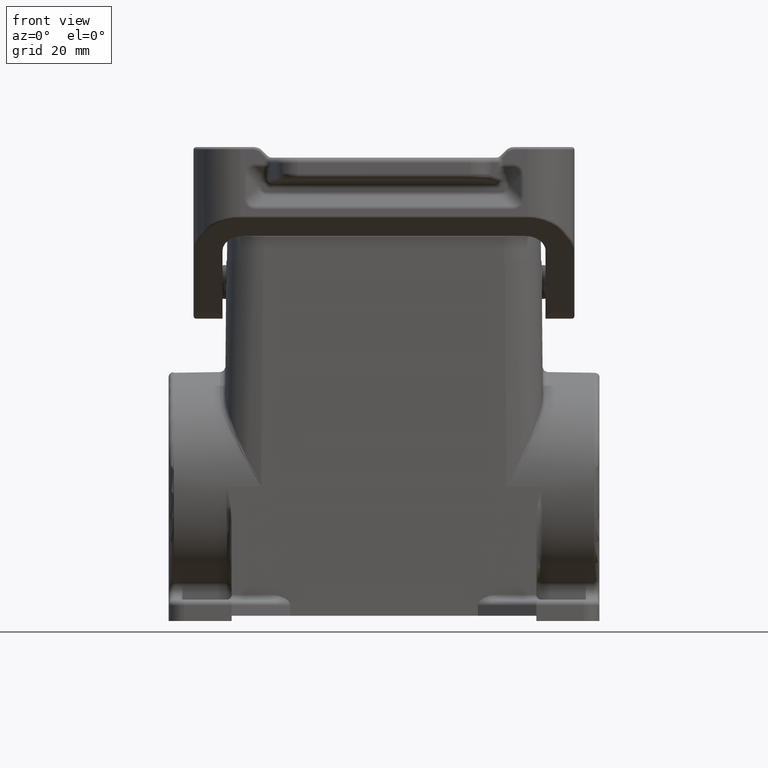
[diagram: clean part render]
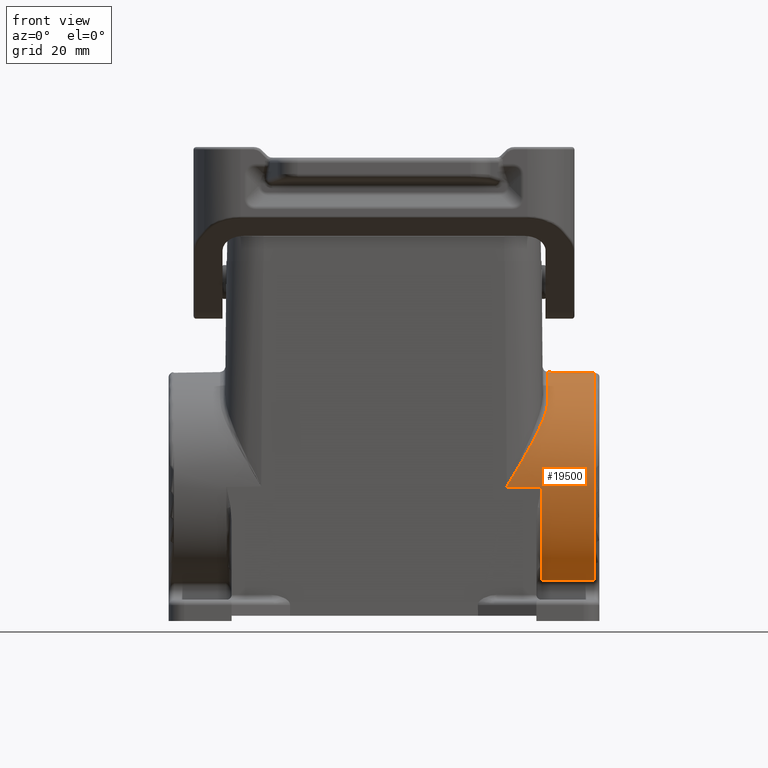
[diagram: same view with one face highlighted and labeled with its STEP entity id]
A machine part, front view. The second image highlights one B-rep face of the part: STEP entity #19500.
In plain terms, the highlighted cylindrical surface (partial cylindrical patch) has radius 21.8744 mm, axis along (1, 0, -0).
Its self-contained STEP definition (entity closure, byte-faithful):
#2060=CARTESIAN_POINT('',(11.7129397181771,47.7285692818229,0.));
#2070=DIRECTION('',(-0.00872620324394422,0.00872620324394422,
0.99992385047757));
#2080=DIRECTION('',(0.999961923064171,0.,0.00872653549837393));
#2090=AXIS2_PLACEMENT_3D('',#2060,#2070,#2080);
#2100=CYLINDRICAL_SURFACE('',#2090,7.);
#2110=CARTESIAN_POINT('',(-5.809144,33.250653,45.5));
#2120=DIRECTION('',(-1.,0.,0.));
#2130=DIRECTION('',(0.,1.,0.));
#2140=AXIS2_PLACEMENT_3D('',#2110,#2120,#2130);
#2150=CYLINDRICAL_SURFACE('',#2140,21.8744223723098);
#2160=CARTESIAN_POINT('',(11.2073483409932,55.1250753723098,
45.4999999999998));
#2170=CARTESIAN_POINT('',(11.2164859319778,55.1250753723098,
45.4840915157677));
#2180=CARTESIAN_POINT('',(11.2256236015096,55.1250580178034,
45.4681832839674));
#2190=CARTESIAN_POINT('',(11.2347612992501,55.1250233104419,
45.4522753327669));
#2200=CARTESIAN_POINT('',(11.2438989969907,55.1249886030805,
45.4363673815665));
#2210=CARTESIAN_POINT('',(11.2530367229402,55.1249365428639,
45.4204597109661));
#2220=CARTESIAN_POINT('',(11.2621744267664,55.1248671314414,
45.4045523491375));
#2230=CARTESIAN_POINT('',(11.2713121305926,55.1247977200189,
45.3886449873089));
#2240=CARTESIAN_POINT('',(11.2804498182669,55.1247109574323,
45.3727379376822));
#2250=CARTESIAN_POINT('',(11.2895874305053,55.1246068452605,
45.3568312232876));
#2260=CARTESIAN_POINT('',(11.298725050837,55.1245027329964,
45.3409244948043));
#2270=CARTESIAN_POINT('',(11.3078625490014,55.1243812715778,
45.3250181552539));
#2280=CARTESIAN_POINT('',(11.3170000001164,55.1242424613328,
45.3091120766616));
#2290=B_SPLINE_CURVE_WITH_KNOTS('',3,(#2160,#2170,#2180,#2190,#2200,
#2210,#2220,#2230,#2240,#2250,#2260,#2270,#2280),.UNSPECIFIED.,.F.,.F.,(
4,3,3,3,4),(0.,0.055037421418957,0.110073664222635,0.165108628369006,
0.220142250874777),.UNSPECIFIED.);
#2300=SURFACE_CURVE('',#2290,(#2100,#2150),.CURVE_3D.);
#2310=CARTESIAN_POINT('',(11.2073483409932,55.1250753723098,45.5));
#2320=VERTEX_POINT('',#2310);
#2330=CARTESIAN_POINT('',(11.3170000001164,55.1242424613328,
45.3091120766616));
#2340=VERTEX_POINT('',#2330);
#2350=EDGE_CURVE('',#2320,#2340,#2300,.T.);
#9640=CARTESIAN_POINT('',(3.46833953718699,47.3298373576048,
28.758825550554));
#9650=CARTESIAN_POINT('',(3.46805976998204,47.3662890404187,
28.7894811036654));
#9660=CARTESIAN_POINT('',(3.46804739972517,47.4026489840104,
28.8202628768185));
#9670=CARTESIAN_POINT('',(3.46842387751178,47.457123287825,
28.8666861500366));
#9680=CARTESIAN_POINT('',(3.46861636155985,47.47532687989,
28.8822510358509));
#9690=CARTESIAN_POINT('',(3.4701709194312,47.5846903080423,
28.976072999363));
#9700=CARTESIAN_POINT('',(3.47312500056299,47.6751623884397,
29.0549925603932));
#9710=CARTESIAN_POINT('',(3.48220456035544,47.8547361468644,
29.2142538288812));
#9720=CARTESIAN_POINT('',(3.48833270981729,47.9438192917733,
29.294582014239));
#9730=CARTESIAN_POINT('',(3.50362360091184,48.12054081695,29.45658470036
));
#9740=CARTESIAN_POINT('',(3.51278818526999,48.2081619066285,
29.5382461510434));
#9750=CARTESIAN_POINT('',(3.53402168398482,48.3819275353914,
29.7028727683062));
#9760=CARTESIAN_POINT('',(3.54609278592974,48.4680554070517,
29.7858258236439));
#9770=CARTESIAN_POINT('',(3.57300744640622,48.6387534289577,
29.9529423922663));
#9780=CARTESIAN_POINT('',(3.58785170103596,48.7233085239567,
30.0370939274851));
#9790=CARTESIAN_POINT('',(3.62018690848006,48.8908204002055,
30.2065463042744));
#9800=CARTESIAN_POINT('',(3.63767817858426,48.9737631221158,
30.2918357403056));
#9810=CARTESIAN_POINT('',(3.67518504587759,49.1380114689333,
30.4635004004896));
#9820=CARTESIAN_POINT('',(3.69520174870482,49.2193089066031,
30.5498699214095));
#9830=CARTESIAN_POINT('',(3.74623175914934,49.4128089681586,
30.7588071707675));
#9840=CARTESIAN_POINT('',(3.77841115698162,49.5241605458401,
30.8818377657053));
#9850=CARTESIAN_POINT('',(3.84720355361476,49.7435065097243,
31.129768009896));
#9860=CARTESIAN_POINT('',(3.88381617188659,49.8514786467468,
31.254649231039));
#9870=CARTESIAN_POINT('',(3.96118902424724,50.064043203658,
31.506165305581));
#9880=CARTESIAN_POINT('',(4.00194626240063,50.168608503469,
31.6327753335512));
#9890=CARTESIAN_POINT('',(4.08733138375758,50.3743233594957,
31.8876117665157));
#9900=CARTESIAN_POINT('',(4.13195538319836,50.4754488135427,
32.0158149977193));
#9910=CARTESIAN_POINT('',(4.22483730386437,50.6743137701708,
32.2737774254749));
#9920=CARTESIAN_POINT('',(4.27309251292893,50.7720300515072,
32.403515699771));
#9930=CARTESIAN_POINT('',(4.37297673270856,50.9640225379163,
32.6643796942401));
#9940=CARTESIAN_POINT('',(4.42460104875464,51.0582793794354,
32.7954853486268));
#9950=CARTESIAN_POINT('',(4.53099910554225,51.2433601504431,
33.0589875010991));
#9960=CARTESIAN_POINT('',(4.58576804546673,51.3341665785297,
33.1913653612731));
#9970=CARTESIAN_POINT('',(4.69824142390555,51.5123526051,
33.4573123923448));
#9980=CARTESIAN_POINT('',(4.75594079889661,51.5997166636509,
33.5908641793945));
#9990=CARTESIAN_POINT('',(4.87422402081522,51.7712470901028,
33.859406440072));
#10000=CARTESIAN_POINT('',(4.93480943213786,51.8553908017796,
33.9943831566953));
#10010=CARTESIAN_POINT('',(5.05854421377567,52.0202698523884,
34.2653655102558));
#10020=CARTESIAN_POINT('',(5.12168837140339,52.1009925955021,
34.4013558846782));
#10030=CARTESIAN_POINT('',(5.25036752557261,52.2590549683613,
34.6742945535834));
#10040=CARTESIAN_POINT('',(5.3158973658957,52.3363831705378,
34.8112285503128));
#10050=CARTESIAN_POINT('',(5.4491824011084,52.4876794338201,
35.0859815216974));
#10060=CARTESIAN_POINT('',(5.51693241288896,52.561637308055,
35.2237870634487));
#10070=CARTESIAN_POINT('',(5.65451804697071,52.7062343796616,
35.5002468365682));
#10080=CARTESIAN_POINT('',(5.72434895274381,52.7768637285834,
35.6388885860977));
#10090=CARTESIAN_POINT('',(5.86593901799052,52.9148156417483,
35.9169335811276));
#10100=CARTESIAN_POINT('',(5.93769312256565,52.9821299510452,
36.0563249227008));
#10110=CARTESIAN_POINT('',(6.08299525354225,53.1134812547136,
36.3358162060853));
#10120=CARTESIAN_POINT('',(6.15653833915053,53.177510751242,
36.4759049155226));
#10130=CARTESIAN_POINT('',(6.30528943797459,53.3023194126407,
36.7567367503309));
#10140=CARTESIAN_POINT('',(6.38049313951682,53.3630923194093,
36.8974702925759));
#10150=CARTESIAN_POINT('',(6.54698987817741,53.4927417528799,
37.2065437121064));
#10160=CARTESIAN_POINT('',(6.63859368170481,53.5609290804687,
37.3749848223105));
#10170=CARTESIAN_POINT('',(6.82380134213421,53.6927767491953,
37.712651285967));
#10180=CARTESIAN_POINT('',(6.91739811996865,53.7564286889314,
37.8818620582533));
#10190=CARTESIAN_POINT('',(7.10641571474084,53.8792523619108,
38.2210037987341));
#10200=CARTESIAN_POINT('',(7.20182885001748,53.9384160175552,
38.3909195404644));
#10210=CARTESIAN_POINT('',(7.39430853464444,54.05230390381,
38.7314023771745));
#10220=CARTESIAN_POINT('',(7.49136754401883,54.1070210829175,
38.9019549987803));
#10230=CARTESIAN_POINT('',(7.68699335107737,54.212063077843,
39.2436742971923));
#10240=CARTESIAN_POINT('',(7.785552977601,54.2623810613918,
39.4148272450816));
#10250=CARTESIAN_POINT('',(7.98401590150642,54.3586531449347,
39.7576661572141));
#10260=CARTESIAN_POINT('',(8.08391197983999,54.4046017830158,
39.9293389107722));
#10270=CARTESIAN_POINT('',(8.28490562569756,54.492169844706,
40.2731655137943));
#10280=CARTESIAN_POINT('',(8.38599613173598,54.5337844363222,
40.4453066759787));
#10290=CARTESIAN_POINT('',(8.58924068106713,54.6127148905689,
40.7900170567886));
#10300=CARTESIAN_POINT('',(8.69138778159717,54.6500265936128,
40.9625740373844));
#10310=CARTESIAN_POINT('',(8.89670181432637,54.7204091612088,
41.3082146241193));
#10320=CARTESIAN_POINT('',(8.99986268190122,54.7534727857456,
41.4812866494119));
#10330=CARTESIAN_POINT('',(9.20699214358454,54.8153467745466,
41.8277646298802));
#10340=CARTESIAN_POINT('',(9.3109540000672,54.8441540647915,
42.0011590429021));
#10350=CARTESIAN_POINT('',(9.51956400462232,54.8975370290315,
42.3482384710066));
#10360=CARTESIAN_POINT('',(9.62420550772758,54.9221100909038,
42.5219122243779));
#10370=CARTESIAN_POINT('',(9.83405562738039,54.9670424945562,
42.8695063893679));
#10380=CARTESIAN_POINT('',(9.93925767104467,54.9873997104978,
43.0434157703369));
#10390=CARTESIAN_POINT('',(10.1501215930068,55.0239165951992,
43.3914533784931));
#10400=CARTESIAN_POINT('',(10.2557769941949,55.0400742416872,
43.5655707737327));
#10410=CARTESIAN_POINT('',(10.4674260901451,55.0682012124428,
43.913970234078));
#10420=CARTESIAN_POINT('',(10.5734133212741,55.0801692616207,
44.0882415939369));
#10430=CARTESIAN_POINT('',(10.7856157944088,55.0999250557748,
44.4369114182353));
#10440=CARTESIAN_POINT('',(10.8918246097132,55.107711876604,
44.6112992775776));
#10450=CARTESIAN_POINT('',(11.1043588219245,55.1191094624699,
44.9601613210511));
#10460=CARTESIAN_POINT('',(11.2106882889378,55.1227196795974,
45.1346185731645));
#10470=CARTESIAN_POINT('',(11.3170000001164,55.1242424613328,
45.3091120766616));
#10480=B_SPLINE_CURVE_WITH_KNOTS('',3,(#9640,#9650,#9660,#9670,#9680,
#9690,#9700,#9710,#9720,#9730,#9740,#9750,#9760,#9770,#9780,#9790,#9800,
#9810,#9820,#9830,#9840,#9850,#9860,#9870,#9880,#9890,#9900,#9910,#9920,
#9930,#9940,#9950,#9960,#9970,#9980,#9990,#10000,#10010,#10020,#10030,
#10040,#10050,#10060,#10070,#10080,#10090,#10100,#10110,#10120,#10130,
#10140,#10150,#10160,#10170,#10180,#10190,#10200,#10210,#10220,#10230,
#10240,#10250,#10260,#10270,#10280,#10290,#10300,#10310,#10320,#10330,
#10340,#10350,#10360,#10370,#10380,#10390,#10400,#10410,#10420,#10430,
#10440,#10450,#10460,#10470),.UNSPECIFIED.,.F.,.F.,(4,2,2,2,2,2,2,2,2,2,
2,2,2,2,2,2,2,2,2,2,2,2,2,2,2,2,2,2,2,2,2,2,2,2,2,2,2,2,2,2,2,4),(0.,
0.14093644557856,0.211830467024438,0.567502383559589,0.923571177880405,
1.28001676835379,1.63695058927316,1.9942474579973,2.35191052279432,
2.70991926831335,3.21335664490568,3.71743200246327,4.22214839680325,
4.72744515347368,5.23352581999672,5.74012979479552,6.2472500051128,
6.75483824899961,7.26413454068193,7.77384896023706,8.28397077467095,
8.79446228170129,9.30540382841038,9.81667064078708,10.3282511618902,
10.8401160876648,11.4502803336149,12.0607907916097,12.6716300778208,
13.282758059777,13.8942333181826,14.5059448809258,15.1178753903332,
15.7299938909333,16.3427985271649,16.9557463553805,17.568819692592,
18.1819935792688,18.7952957316329,19.4086575391215,20.0220664866507,
20.6354969920398),.UNSPECIFIED.);
#10490=CARTESIAN_POINT('',(3.46833953718699,47.3298373576048,
28.758825550554));
#10500=VERTEX_POINT('',#10490);
#10510=EDGE_CURVE('',#10500,#2340,#10480,.T.);
#12790=CARTESIAN_POINT('',(-5.309144,45.8712799545903,63.3664526248294))
;
#12800=VERTEX_POINT('',#12790);
#12850=CARTESIAN_POINT('',(-5.809144,45.8712799545903,63.3664526248294))
;
#12860=DIRECTION('',(-1.,0.,0.));
#12870=VECTOR('',#12860,1.);
#12880=LINE('',#12850,#12870);
#12890=CARTESIAN_POINT('',(4.690856,45.8712799545903,63.3664526248294));
#12900=VERTEX_POINT('',#12890);
#12910=EDGE_CURVE('',#12900,#12800,#12880,.T.);
#14650=CARTESIAN_POINT('',(11.7129397181771,18.7727367181771,0.));
#14660=DIRECTION('',(-0.00872620324394422,-0.00872620324394422,
0.99992385047757));
#14670=DIRECTION('',(0.999961923064171,0.,0.00872653549837393));
#14680=AXIS2_PLACEMENT_3D('',#14650,#14660,#14670);
#14690=CYLINDRICAL_SURFACE('',#14680,7.);
#14740=CARTESIAN_POINT('',(11.3170000001164,11.3770635386672,
45.3091120766616));
#14750=VERTEX_POINT('',#14740);
#14800=CARTESIAN_POINT('',(11.3170000001164,11.3770635386672,
45.3091120766616));
#14810=CARTESIAN_POINT('',(11.3078625490014,11.3769247284222,
45.3250181552539));
#14820=CARTESIAN_POINT('',(11.2987250508398,11.3768032670036,
45.3409244948059));
#14830=CARTESIAN_POINT('',(11.2895874305075,11.3766991547395,
45.3568312232888));
#14840=CARTESIAN_POINT('',(11.2804498182684,11.3765950425677,
45.3727379376829));
#14850=CARTESIAN_POINT('',(11.2713121305939,11.3765082799811,
45.3886449873094));
#14860=CARTESIAN_POINT('',(11.2621744267675,11.3764388685586,
45.4045523491379));
#14870=CARTESIAN_POINT('',(11.2530367229411,11.3763694571361,
45.4204597109664));
#14880=CARTESIAN_POINT('',(11.2438989969914,11.3763173969195,
45.4363673815667));
#14890=CARTESIAN_POINT('',(11.2347612992508,11.3762826895581,
45.4522753327671));
#14900=CARTESIAN_POINT('',(11.2256236015102,11.3762479821966,
45.4681832839674));
#14910=CARTESIAN_POINT('',(11.2164859319785,11.3762306276902,
45.4840915157678));
#14920=CARTESIAN_POINT('',(11.207348340994,11.3762306276902,
45.4999999999998));
#14930=B_SPLINE_CURVE_WITH_KNOTS('',3,(#14800,#14810,#14820,#14830,
#14840,#14850,#14860,#14870,#14880,#14890,#14900,#14910,#14920),
.UNSPECIFIED.,.F.,.F.,(4,3,3,3,4),(0.,0.0550336225050489,
0.110068586650464,0.16510482945505,0.220142250878972),.UNSPECIFIED.);
#14940=SURFACE_CURVE('',#14930,(#14690,#2150),.CURVE_3D.);
#14950=CARTESIAN_POINT('',(11.207348340994,11.3762306276902,45.5));
#14960=VERTEX_POINT('',#14950);
#14970=EDGE_CURVE('',#14750,#14960,#14940,.T.);
#17870=CARTESIAN_POINT('',(-5.809144,11.3762306276902,45.5));
#17880=DIRECTION('',(-1.,0.,0.));
#17890=VECTOR('',#17880,1.);
#17900=LINE('',#17870,#17890);
#17910=CARTESIAN_POINT('',(4.690856,11.3762306276902,45.5));
#17920=VERTEX_POINT('',#17910);
#17930=EDGE_CURVE('',#14960,#17920,#17900,.T.);
#17940=ORIENTED_EDGE('',*,*,#17930,.T.);
#17950=ORIENTED_EDGE('',*,*,#14970,.T.);
#17960=CARTESIAN_POINT('',(11.3170000001164,11.3770635386672,
45.3091120766616));
#17970=CARTESIAN_POINT('',(11.2106882889378,11.3785863204026,
45.1346185731646));
#17980=CARTESIAN_POINT('',(11.1043588219246,11.3821965375301,
44.9601613210512));
#17990=CARTESIAN_POINT('',(10.8918246097133,11.393594123396,
44.6112992775777));
#18000=CARTESIAN_POINT('',(10.7856157944088,11.4013809442252,
44.4369114182355));
#18010=CARTESIAN_POINT('',(10.573413321274,11.4211367383793,
44.0882415939369));
#18020=CARTESIAN_POINT('',(10.4674260901454,11.4331047875572,
43.9139702340782));
#18030=CARTESIAN_POINT('',(10.2557769941951,11.4612317583128,
43.5655707737328));
#18040=CARTESIAN_POINT('',(10.1501215930069,11.4773894048007,
43.3914533784933));
#18050=CARTESIAN_POINT('',(9.93925767104481,11.5139062895022,
43.0434157703371));
#18060=CARTESIAN_POINT('',(9.83405562738045,11.5342635054438,
42.8695063893682));
#18070=CARTESIAN_POINT('',(9.62420550772769,11.5791959090961,
42.5219122243782));
#18080=CARTESIAN_POINT('',(9.51956400462251,11.6037689709685,
42.3482384710068));
#18090=CARTESIAN_POINT('',(9.31095400006749,11.6571519352084,
42.0011590429025));
#18100=CARTESIAN_POINT('',(9.20699214358467,11.6859592254533,
41.8277646298805));
#18110=CARTESIAN_POINT('',(8.99986268190143,11.7478332142543,
41.4812866494123));
#18120=CARTESIAN_POINT('',(8.89670181432663,11.7808968387912,
41.3082146241197));
#18130=CARTESIAN_POINT('',(8.69138778159742,11.8512794063871,
40.9625740373847));
#18140=CARTESIAN_POINT('',(8.58924068106741,11.888591109431,
40.7900170567889));
#18150=CARTESIAN_POINT('',(8.38599613173629,11.9675215636777,
40.4453066759791));
#18160=CARTESIAN_POINT('',(8.2849056256978,12.0091361552939,
40.2731655137947));
#18170=CARTESIAN_POINT('',(8.0839119798403,12.096704216984,
39.9293389107726));
#18180=CARTESIAN_POINT('',(7.98401590150671,12.1426528550652,
39.7576661572145));
#18190=CARTESIAN_POINT('',(7.78555297760129,12.2389249386081,
39.4148272450821));
#18200=CARTESIAN_POINT('',(7.68699335107766,12.2892429221569,
39.2436742971928));
#18210=CARTESIAN_POINT('',(7.49136754401914,12.3942849170823,
38.9019549987808));
#18220=CARTESIAN_POINT('',(7.39430853464475,12.4490020961898,
38.7314023771751));
#18230=CARTESIAN_POINT('',(7.20182885001783,12.5628899824446,
38.390919540465));
#18240=CARTESIAN_POINT('',(7.10641571474118,12.6220536380891,
38.2210037987346));
#18250=CARTESIAN_POINT('',(6.91739811996901,12.7448773110684,
37.8818620582539));
#18260=CARTESIAN_POINT('',(6.82380134213459,12.8085292508044,
37.7126512859676));
#18270=CARTESIAN_POINT('',(6.63859368170519,12.9403769195311,
37.3749848223111));
#18280=CARTESIAN_POINT('',(6.54698987817778,13.0085642471198,
37.2065437121071));
#18290=CARTESIAN_POINT('',(6.38049313950931,13.1382136805966,
36.8974702925619));
#18300=CARTESIAN_POINT('',(6.30528943795943,13.1989865873716,
36.7567367503025));
#18310=CARTESIAN_POINT('',(6.15653833912029,13.3237952487838,
36.4759049154652));
#18320=CARTESIAN_POINT('',(6.08299525350469,13.3878247453194,
36.3358162060136));
#18330=CARTESIAN_POINT('',(5.93769312251379,13.5191760490027,
36.0563249226004));
#18340=CARTESIAN_POINT('',(5.86593901793173,13.5864903583074,
35.916933581013));
#18350=CARTESIAN_POINT('',(5.72434895267159,13.7244422714886,
35.6388885859549));
#18360=CARTESIAN_POINT('',(5.65451804689192,13.7950716204189,
35.5002468364112));
#18370=CARTESIAN_POINT('',(5.51693241279769,13.9396686920432,
35.2237870632639));
#18380=CARTESIAN_POINT('',(5.44918240101107,14.0136265662873,
35.0859815214986));
#18390=CARTESIAN_POINT('',(5.31589736578692,14.1649228295887,
34.8112285500866));
#18400=CARTESIAN_POINT('',(5.25036752545835,14.2422510317751,
34.6742945533436));
#18410=CARTESIAN_POINT('',(5.1216883712788,14.4003134046549,
34.4013558844114));
#18420=CARTESIAN_POINT('',(5.05854421364618,14.4810361477792,
34.2653655099755));
#18430=CARTESIAN_POINT('',(4.93480943199931,14.6459151984099,
33.9943831563886));
#18440=CARTESIAN_POINT('',(4.87422402067243,14.7300589100981,
33.859406439752));
#18450=CARTESIAN_POINT('',(4.75594079874623,14.9015893365733,
33.5908641790488));
#18460=CARTESIAN_POINT('',(4.69824142375173,14.9889533951362,
33.4573123919865));
#18470=CARTESIAN_POINT('',(4.58576804530686,15.1671394217311,
33.1913653608897));
#18480=CARTESIAN_POINT('',(4.53099910537974,15.2579458498304,
33.0589875007033));
#18490=CARTESIAN_POINT('',(4.42460104858773,15.4430266208641,
32.7954853482067));
#18500=CARTESIAN_POINT('',(4.37297673253988,15.5372834623966,
32.664379693808));
#18510=CARTESIAN_POINT('',(4.27309251275769,15.7292759488333,
32.4035156993153));
#18520=CARTESIAN_POINT('',(4.22483730369232,15.8269922301837,
32.2737774250076));
#18530=CARTESIAN_POINT('',(4.13195538302576,16.0258571868407,
32.0158149972293));
#18540=CARTESIAN_POINT('',(4.08733138358523,16.1269826409024,
31.8876117660147));
#18550=CARTESIAN_POINT('',(4.00194626222991,16.3326974969594,
31.6327753330283));
#18560=CARTESIAN_POINT('',(3.96118902407792,16.4372627967858,
31.5061653050476));
#18570=CARTESIAN_POINT('',(3.88381617172132,16.6498273537285,
31.2546492304849));
#18580=CARTESIAN_POINT('',(3.84720355345214,16.7577994907671,
31.1297680093318));
#18590=CARTESIAN_POINT('',(3.77841115682568,16.9771454546841,
30.8818377651215));
#18600=CARTESIAN_POINT('',(3.74623175899743,17.0884970323824,
30.7588071701742));
#18610=CARTESIAN_POINT('',(3.69520174856399,17.2819970939559,
30.5498699208125));
#18620=CARTESIAN_POINT('',(3.67518504574311,17.3632945316267,
30.4635003998979));
#18630=CARTESIAN_POINT('',(3.6376781784626,17.5275428784459,
30.2918357397249));
#18640=CARTESIAN_POINT('',(3.62018690836484,17.610485600357,
30.2065463036992));
#18650=CARTESIAN_POINT('',(3.58785170093376,17.7779974766071,
30.0370939269209));
#18660=CARTESIAN_POINT('',(3.57300744631055,17.8625525716067,
29.9529423917077));
#18670=CARTESIAN_POINT('',(3.54609278584727,18.0332505935136,
29.7858258230964));
#18680=CARTESIAN_POINT('',(3.53402168390898,18.1193784651743,
29.7028727677644));
#18690=CARTESIAN_POINT('',(3.5127881852075,18.2931440939378,
29.5382461505128));
#18700=CARTESIAN_POINT('',(3.50362360085607,18.3807651836163,
29.4565846998351));
#18710=CARTESIAN_POINT('',(3.48833270977504,18.557486708793,
29.2945820137254));
#18720=CARTESIAN_POINT('',(3.48220456031999,18.6465698537019,
29.2142538283734));
#18730=CARTESIAN_POINT('',(3.4731250005412,18.8261436121261,
29.054992559897));
#18740=CARTESIAN_POINT('',(3.47017091941627,18.9166156925232,
28.9760729988725));
#18750=CARTESIAN_POINT('',(3.46861636155593,19.0259791204826,
28.8822510355323));
#18760=CARTESIAN_POINT('',(3.46842387751057,19.0441827123547,
28.8666861498835));
#18770=CARTESIAN_POINT('',(3.46804739972518,19.0986570159779,
28.8202628768284));
#18780=CARTESIAN_POINT('',(3.46805976998204,19.1350169595719,
28.7894811036733));
#18790=CARTESIAN_POINT('',(3.46833953718694,19.171468642388,
28.7588255505601));
#18800=B_SPLINE_CURVE_WITH_KNOTS('',3,(#17960,#17970,#17980,#17990,
#18000,#18010,#18020,#18030,#18040,#18050,#18060,#18070,#18080,#18090,
#18100,#18110,#18120,#18130,#18140,#18150,#18160,#18170,#18180,#18190,
#18200,#18210,#18220,#18230,#18240,#18250,#18260,#18270,#18280,#18290,
#18300,#18310,#18320,#18330,#18340,#18350,#18360,#18370,#18380,#18390,
#18400,#18410,#18420,#18430,#18440,#18450,#18460,#18470,#18480,#18490,
#18500,#18510,#18520,#18530,#18540,#18550,#18560,#18570,#18580,#18590,
#18600,#18610,#18620,#18630,#18640,#18650,#18660,#18670,#18680,#18690,
#18700,#18710,#18720,#18730,#18740,#18750,#18760,#18770,#18780,#18790),
.UNSPECIFIED.,.F.,.F.,(4,2,2,2,2,2,2,2,2,2,2,2,2,2,2,2,2,2,2,2,2,2,2,2,2
,2,2,2,2,2,2,2,2,2,2,2,2,2,2,2,2,4),(0.,0.613430505388971,
1.22683945291824,1.84020126040707,2.45350341277115,3.06667729944788,
3.67975063665933,4.2926984648747,4.90550310110625,5.51762160170626,
6.12955211111341,6.74126367385664,7.35273893226215,7.96386691421841,
8.57470620042933,9.18521665842415,9.79538090437413,10.3072458302016,
10.8188263513577,11.3300931637872,11.8410347105488,12.3515262176316,
12.8616480321178,13.3713624517253,13.8806587434599,14.3882469873983,
14.895367197767,15.4019711726171,15.9080518391913,16.4133485959126,
16.9180649903033,17.4221403479115,17.9255777245542,18.2835864700599,
18.6412495348434,18.9985464035542,19.3554802244602,19.7119258149203,
20.0679946092278,20.4236665257495,20.4945605464429,20.6354969920298),
.UNSPECIFIED.);
#18810=CARTESIAN_POINT('',(3.46833953718694,19.171468642388,
28.7588255505601));
#18820=VERTEX_POINT('',#18810);
#18830=EDGE_CURVE('',#14750,#18820,#18800,.T.);
#18840=ORIENTED_EDGE('',*,*,#18830,.F.);
#18850=CARTESIAN_POINT('',(3.46833953718699,47.3298373576048,
28.758825550554));
#18860=CARTESIAN_POINT('',(3.46860931325075,47.2946861778016,
28.7292637093385));
#18870=CARTESIAN_POINT('',(3.46887810730078,47.2594419855868,
28.6998125803349));
#18880=CARTESIAN_POINT('',(3.47756373385369,46.1131442330793,
27.748048712434));
#18890=CARTESIAN_POINT('',(3.48496229892481,44.9128790030214,
26.9373199911358));
#18900=CARTESIAN_POINT('',(3.49906057861647,42.0506947349561,
25.3924420104347));
#18910=CARTESIAN_POINT('',(3.50506432062732,40.3605782656965,
24.7345568614963));
#18920=CARTESIAN_POINT('',(3.51314191855818,36.8571833433008,
23.8494202736804));
#18930=CARTESIAN_POINT('',(3.51518466644476,35.057397344548,
23.6255776276902));
#18940=CARTESIAN_POINT('',(3.51518466644476,31.443908655557,
23.6255776276902));
#18950=CARTESIAN_POINT('',(3.51314191855842,29.6441226569081,
23.8494202736544));
#18960=CARTESIAN_POINT('',(3.50506432062848,26.1407277347034,
24.7345568613685));
#18970=CARTESIAN_POINT('',(3.49906057861832,24.4506112655286,
25.392442010232));
#18980=CARTESIAN_POINT('',(3.48496229892696,21.5884269973268,
26.9373199909007));
#18990=CARTESIAN_POINT('',(3.47756373385491,20.3881617670819,
27.7480487123001));
#19000=CARTESIAN_POINT('',(3.46887810730076,19.2418640144106,
28.6998125803371));
#19010=CARTESIAN_POINT('',(3.46860931325072,19.2066198221934,
28.7292637093427));
#19020=CARTESIAN_POINT('',(3.46833953718694,19.171468642388,
28.7588255505601));
#19030=B_SPLINE_CURVE_WITH_KNOTS('',3,(#18850,#18860,#18870,#18880,
#18890,#18900,#18910,#18920,#18930,#18940,#18950,#18960,#18970,#18980,
#18990,#19000,#19010,#19020),.UNSPECIFIED.,.F.,.F.,(4,2,2,2,2,2,2,2,4),(
0.,0.140932720343958,4.5717616654923,10.1088159961135,15.6458682748362,
21.1829205532369,26.7199748835364,31.1508038293284,31.2917365496806),
.UNSPECIFIED.);
#19040=EDGE_CURVE('',#10500,#18820,#19030,.T.);
#19050=ORIENTED_EDGE('',*,*,#19040,.T.);
#19060=ORIENTED_EDGE('',*,*,#10510,.F.);
#19070=ORIENTED_EDGE('',*,*,#2350,.T.);
#19080=CARTESIAN_POINT('',(-5.809144,55.1250753723098,45.5));
#19090=DIRECTION('',(-1.,0.,0.));
#19100=VECTOR('',#19090,1.);
#19110=LINE('',#19080,#19100);
#19120=CARTESIAN_POINT('',(4.690856,55.1250753723098,45.5));
#19130=VERTEX_POINT('',#19120);
#19140=EDGE_CURVE('',#2320,#19130,#19110,.T.);
#19150=ORIENTED_EDGE('',*,*,#19140,.F.);
#19160=CARTESIAN_POINT('',(4.690856,33.250653,45.5));
#19170=DIRECTION('',(-1.,0.,0.));
#19180=DIRECTION('',(0.,1.,0.));
#19190=AXIS2_PLACEMENT_3D('',#19160,#19170,#19180);
#19200=CIRCLE('',#19190,21.8744223723098);
#19210=EDGE_CURVE('',#12900,#19130,#19200,.T.);
#19220=ORIENTED_EDGE('',*,*,#19210,.T.);
#19230=ORIENTED_EDGE('',*,*,#12910,.F.);
#19240=CARTESIAN_POINT('',(-5.309144,33.250653,45.5));
#19250=DIRECTION('',(-1.,0.,0.));
#19260=DIRECTION('',(0.,1.,0.));
#19270=AXIS2_PLACEMENT_3D('',#19240,#19250,#19260);
#19280=CIRCLE('',#19270,21.8744223723098);
#19290=CARTESIAN_POINT('',(-5.309144,20.6300260454097,63.3664526248294))
;
#19300=VERTEX_POINT('',#19290);
#19310=EDGE_CURVE('',#12800,#19300,#19280,.T.);
#19320=ORIENTED_EDGE('',*,*,#19310,.F.);
#19330=CARTESIAN_POINT('',(-5.809144,20.6300260454097,63.3664526248294))
;
#19340=DIRECTION('',(-1.,0.,0.));
#19350=VECTOR('',#19340,1.);
#19360=LINE('',#19330,#19350);
#19370=CARTESIAN_POINT('',(4.690856,20.6300260454097,63.3664526248294));
#19380=VERTEX_POINT('',#19370);
#19390=EDGE_CURVE('',#19380,#19300,#19360,.T.);
#19400=ORIENTED_EDGE('',*,*,#19390,.T.);
#19410=CARTESIAN_POINT('',(4.690856,33.250653,45.5));
#19420=DIRECTION('',(-1.,0.,0.));
#19430=DIRECTION('',(0.,1.,0.));
#19440=AXIS2_PLACEMENT_3D('',#19410,#19420,#19430);
#19450=CIRCLE('',#19440,21.8744223723098);
#19460=EDGE_CURVE('',#17920,#19380,#19450,.T.);
#19470=ORIENTED_EDGE('',*,*,#19460,.T.);
#19480=EDGE_LOOP('',(#19470,#19400,#19320,#19230,#19220,#19150,#19070,
#19060,#19050,#18840,#17950,#17940));
#19490=FACE_OUTER_BOUND('',#19480,.T.);
#19500=ADVANCED_FACE('',(#19490),#2150,.T.);